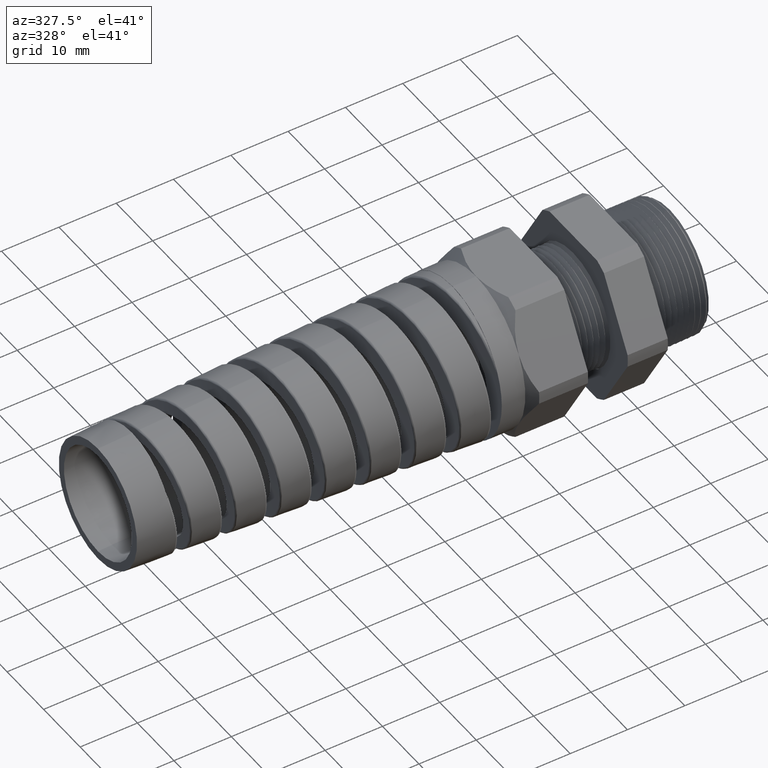
[diagram: clean part render]
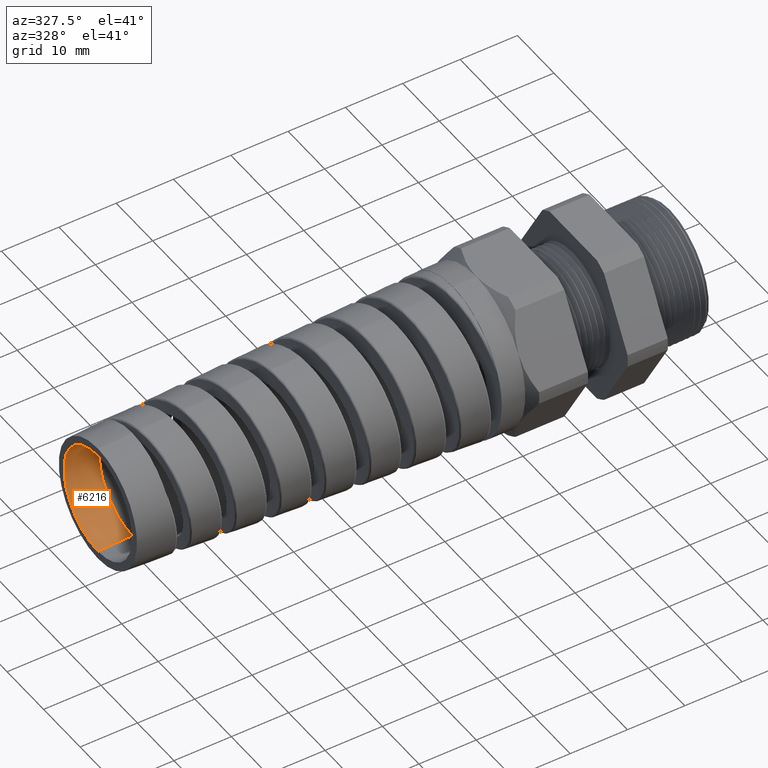
[diagram: same view with one face highlighted and labeled with its STEP entity id]
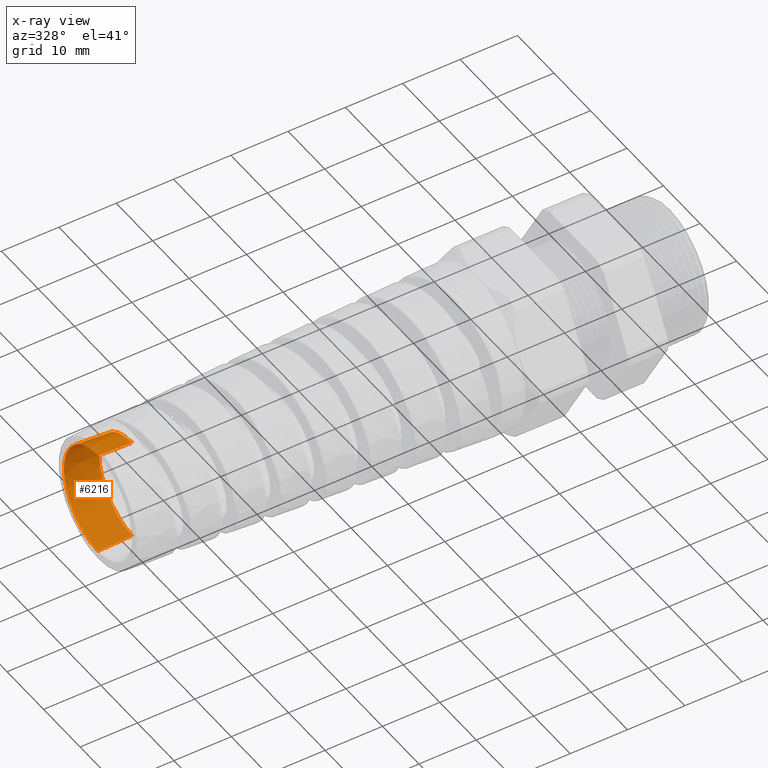
[diagram: x-ray of the same camera — body ghosted, the highlighted face saturated]
A machine part, auxiliary view. The second image highlights one B-rep face of the part: STEP entity #6216.
The next image is the same camera in x-ray: the body ghosted, the highlighted face saturated — about 0% of this face is hidden behind the body in this view.
In plain terms, the highlighted conical surface has half-angle 2.5 deg.
Its self-contained STEP definition (entity closure, byte-faithful):
#1737 = DIRECTION ( 'NONE',  ( -0.9990482215818576900, 0.0000000000000000000, 0.04361938736533609700 ) ) ;
#1738 = VECTOR ( 'NONE', #1737, 39.37007874015748100 ) ;
#1739 = CARTESIAN_POINT ( 'NONE',  ( -3.613780000000000200, 0.0000000000000000000, 0.3560000000000194100 ) ) ;
#1740 = LINE ( 'NONE', #1739, #1738 ) ;
#1741 = CARTESIAN_POINT ( 'NONE',  ( -3.613780000000000200, 0.0000000000000000000, 0.3560000000000194100 ) ) ;
#1760 = CARTESIAN_POINT ( 'NONE',  ( -3.850000472440945600, 4.486047882084496300E-017, -0.3663136085610853600 ) ) ;
#1762 = CARTESIAN_POINT ( 'NONE',  ( -3.850000472440945600, 0.0000000000000000000, 0.3663136085610853600 ) ) ;
#1787 = CARTESIAN_POINT ( 'NONE',  ( -3.613780000000000200, 0.0000000000000000000, -0.3559999999999997100 ) ) ;
#1798 = DIRECTION ( 'NONE',  ( -0.9990482215818576900, 5.341834311772734800E-018, -0.04361938736533609700 ) ) ;
#1799 = VECTOR ( 'NONE', #1798, 39.37007874015748100 ) ;
#1800 = CARTESIAN_POINT ( 'NONE',  ( -3.613780000000000200, 4.359742604964815500E-017, -0.3560000000000194100 ) ) ;
#1801 = LINE ( 'NONE', #1800, #1799 ) ;
#4805 = AXIS2_PLACEMENT_3D ( 'NONE', #4867, #4866, #4865 ) ;
#4806 = CIRCLE ( 'NONE', #4805, 0.3559999999999997100 ) ;
#4807 = CARTESIAN_POINT ( 'NONE',  ( -3.613780000000000200, 0.2742174342172051800, 0.2270259869956446400 ) ) ;
#4865 = DIRECTION ( 'NONE',  ( 0.0000000000000000000, 0.0000000000000000000, -1.000000000000000000 ) ) ;
#4866 = DIRECTION ( 'NONE',  ( 1.000000000000000000, 0.0000000000000000000, 0.0000000000000000000 ) ) ;
#4867 = CARTESIAN_POINT ( 'NONE',  ( -3.613780000000000200, 0.0000000000000000000, 0.0000000000000000000 ) ) ;
#6215 = EDGE_CURVE ( 'NONE', #13806, #14488, #8778, .T. ) ;
#6216 = ADVANCED_FACE ( 'NONE', ( #8773 ), #8772, .F. ) ;
#6217 = EDGE_LOOP ( 'NONE', ( #6218, #6219, #6285, #6286, #6287 ) ) ;
#6218 = ORIENTED_EDGE ( 'NONE', *, *, #13846, .F. ) ;
#6219 = ORIENTED_EDGE ( 'NONE', *, *, #14490, .T. ) ;
#6226 = EDGE_CURVE ( 'NONE', #13831, #13833, #8760, .T. ) ;
#6285 = ORIENTED_EDGE ( 'NONE', *, *, #6215, .F. ) ;
#6286 = ORIENTED_EDGE ( 'NONE', *, *, #13808, .T. ) ;
#6287 = ORIENTED_EDGE ( 'NONE', *, *, #6226, .T. ) ;
#8760 = CIRCLE ( 'NONE', #8812, 0.3663136085610853600 ) ;
#8767 = DIRECTION ( 'NONE',  ( 0.0000000000000000000, 0.0000000000000000000, 1.000000000000000000 ) ) ;
#8768 = DIRECTION ( 'NONE',  ( -1.000000000000000000, 0.0000000000000000000, 0.0000000000000000000 ) ) ;
#8769 = CARTESIAN_POINT ( 'NONE',  ( -3.613780000000000200, 0.0000000000000000000, 0.0000000000000000000 ) ) ;
#8770 = AXIS2_PLACEMENT_3D ( 'NONE', #8769, #8768, #8767 ) ;
#8772 = CONICAL_SURFACE ( 'NONE', #8770, 0.3560000000000194100, 0.04363323129985833400 ) ;
#8773 = FACE_OUTER_BOUND ( 'NONE', #6217, .T. ) ;
#8774 = DIRECTION ( 'NONE',  ( 0.0000000000000000000, 0.0000000000000000000, 1.000000000000000000 ) ) ;
#8775 = DIRECTION ( 'NONE',  ( -1.000000000000000000, 0.0000000000000000000, 0.0000000000000000000 ) ) ;
#8776 = CARTESIAN_POINT ( 'NONE',  ( -3.613780000000000200, 0.0000000000000000000, 0.0000000000000000000 ) ) ;
#8777 = AXIS2_PLACEMENT_3D ( 'NONE', #8776, #8775, #8774 ) ;
#8778 = CIRCLE ( 'NONE', #8777, 0.3560000000000194100 ) ;
#8809 = DIRECTION ( 'NONE',  ( 0.0000000000000000000, 0.0000000000000000000, 1.000000000000000000 ) ) ;
#8810 = DIRECTION ( 'NONE',  ( -1.000000000000000000, 0.0000000000000000000, 0.0000000000000000000 ) ) ;
#8811 = CARTESIAN_POINT ( 'NONE',  ( -3.850000472440945600, 0.0000000000000000000, 0.0000000000000000000 ) ) ;
#8812 = AXIS2_PLACEMENT_3D ( 'NONE', #8811, #8810, #8809 ) ;
#13806 = VERTEX_POINT ( 'NONE', #1741 ) ;
#13808 = EDGE_CURVE ( 'NONE', #13806, #13831, #1740, .T. ) ;
#13831 = VERTEX_POINT ( 'NONE', #1762 ) ;
#13833 = VERTEX_POINT ( 'NONE', #1760 ) ;
#13846 = EDGE_CURVE ( 'NONE', #13852, #13833, #1801, .T. ) ;
#13852 = VERTEX_POINT ( 'NONE', #1787 ) ;
#14488 = VERTEX_POINT ( 'NONE', #4807 ) ;
#14490 = EDGE_CURVE ( 'NONE', #13852, #14488, #4806, .T. ) ;